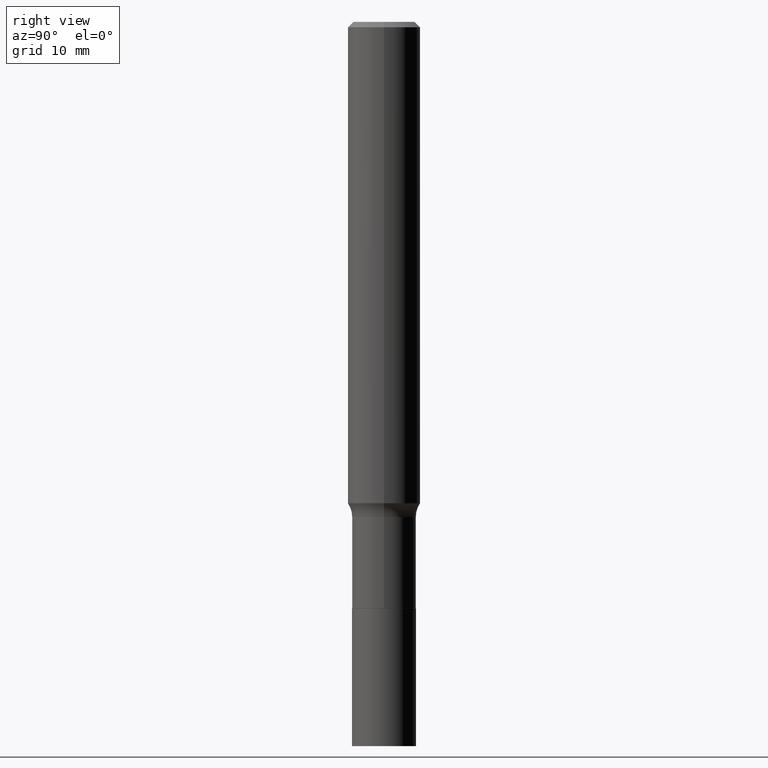
[diagram: clean part render]
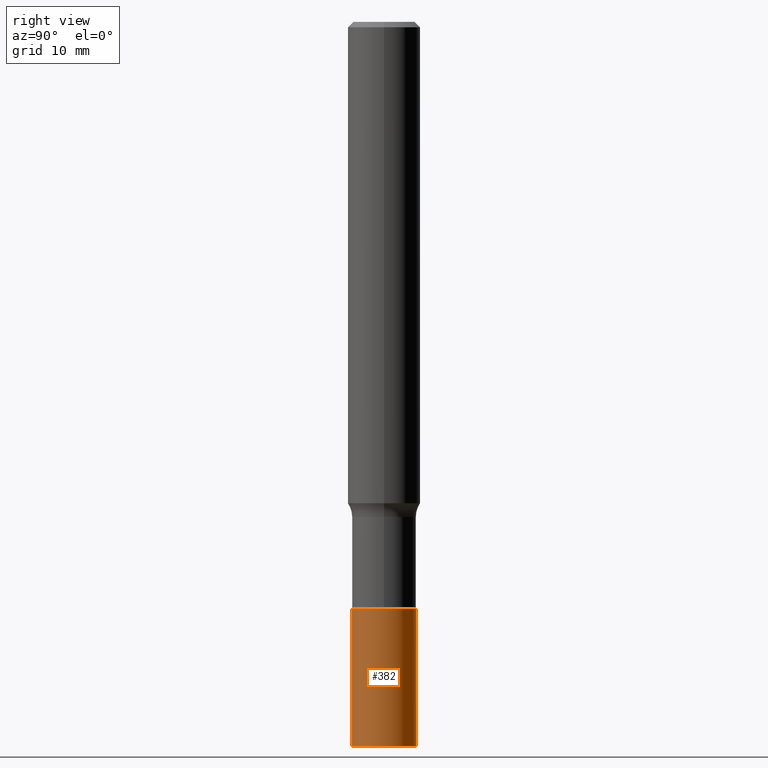
[diagram: same view with one face highlighted and labeled with its STEP entity id]
A machine part, right view. The second image highlights one B-rep face of the part: STEP entity #382.
In plain terms, the highlighted cylindrical surface (edge-blend (fillet) strip) has radius 2.6543 mm, axis along (-0, 0, 1).
Its self-contained STEP definition (entity closure, byte-faithful):
#25 = VERTEX_POINT ( 'NONE', #312 ) ;
#45 = VECTOR ( 'NONE', #145, 39.37007874015748143 ) ;
#51 = EDGE_CURVE ( 'NONE', #25, #135, #176, .T. ) ;
#53 = DIRECTION ( 'NONE',  ( -2.426571974108162816E-29, 3.518542677918260450E-15, 1.000000000000000000 ) ) ;
#83 = AXIS2_PLACEMENT_3D ( 'NONE', #263, #291, #227 ) ;
#118 = EDGE_CURVE ( 'NONE', #422, #25, #455, .T. ) ;
#135 = VERTEX_POINT ( 'NONE', #184 ) ;
#145 = DIRECTION ( 'NONE',  ( -2.426571974108162816E-29, 3.518542677918260450E-15, 1.000000000000000000 ) ) ;
#152 = CARTESIAN_POINT ( 'NONE',  ( 4.678670919993403663E-29, -6.679902097474707102E-15, -1.913200000000000234 ) ) ;
#161 = DIRECTION ( 'NONE',  ( -2.426571974108162816E-29, 3.518542677918260450E-15, 1.000000000000000000 ) ) ;
#164 = ORIENTED_EDGE ( 'NONE', *, *, #318, .F. ) ;
#176 = LINE ( 'NONE', #325, #45 ) ;
#184 = CARTESIAN_POINT ( 'NONE',  ( 7.425171588693624475E-16, 0.1044999999999933066, -1.913200000000000456 ) ) ;
#199 = ORIENTED_EDGE ( 'NONE', *, *, #118, .T. ) ;
#207 = DIRECTION ( 'NONE',  ( -2.426571974108162816E-29, 3.518542677918260450E-15, 1.000000000000000000 ) ) ;
#211 = CARTESIAN_POINT ( 'NONE',  ( 4.678670919993403663E-29, -6.679902097474707102E-15, -1.913200000000000234 ) ) ;
#227 = DIRECTION ( 'NONE',  ( -6.982962677686265922E-15, -1.000000000000000000, 2.614208606377285061E-15 ) ) ;
#234 = CARTESIAN_POINT ( 'NONE',  ( -7.297195998181678828E-16, -0.1045000000000066709, -1.913200000000000012 ) ) ;
#247 = EDGE_LOOP ( 'NONE', ( #199, #314, #461, #164 ) ) ;
#263 = CARTESIAN_POINT ( 'NONE',  ( 5.768201736367969540E-29, -8.259727759860008173E-15, -2.362200000000000522 ) ) ;
#264 = CARTESIAN_POINT ( 'NONE',  ( -7.297195998181680800E-16, -0.1045000000000066848, -1.913200000000000012 ) ) ;
#273 = EDGE_CURVE ( 'NONE', #308, #135, #396, .T. ) ;
#291 = DIRECTION ( 'NONE',  ( -2.426571974108162816E-29, 3.518542677918260450E-15, 1.000000000000000000 ) ) ;
#306 = LINE ( 'NONE', #264, #309 ) ;
#308 = VERTEX_POINT ( 'NONE', #234 ) ;
#309 = VECTOR ( 'NONE', #53, 39.37007874015748143 ) ;
#312 = CARTESIAN_POINT ( 'NONE',  ( 7.425171588693569255E-16, 0.1044999999999917384, -2.362200000000000966 ) ) ;
#314 = ORIENTED_EDGE ( 'NONE', *, *, #51, .T. ) ;
#318 = EDGE_CURVE ( 'NONE', #422, #308, #306, .T. ) ;
#325 = CARTESIAN_POINT ( 'NONE',  ( 7.425171588693514035E-16, 0.1044999999999933343, -1.913200000000000456 ) ) ;
#352 = DIRECTION ( 'NONE',  ( -6.982962677686265922E-15, -1.000000000000000000, 2.614208606377285061E-15 ) ) ;
#382 = ADVANCED_FACE ( 'NONE', ( #388 ), #421, .T. ) ;
#383 = DIRECTION ( 'NONE',  ( -6.982962677686266711E-15, -1.000000000000000000, 2.614208606377285850E-15 ) ) ;
#388 = FACE_OUTER_BOUND ( 'NONE', #247, .T. ) ;
#396 = CIRCLE ( 'NONE', #418, 0.1044999999999999818 ) ;
#418 = AXIS2_PLACEMENT_3D ( 'NONE', #152, #161, #383 ) ;
#421 = CYLINDRICAL_SURFACE ( 'NONE', #449, 0.1045000000000000095 ) ;
#422 = VERTEX_POINT ( 'NONE', #428 ) ;
#428 = CARTESIAN_POINT ( 'NONE',  ( -7.297195998181572331E-16, -0.1045000000000082668, -2.362200000000000077 ) ) ;
#449 = AXIS2_PLACEMENT_3D ( 'NONE', #211, #207, #352 ) ;
#455 = CIRCLE ( 'NONE', #83, 0.1045000000000000095 ) ;
#461 = ORIENTED_EDGE ( 'NONE', *, *, #273, .F. ) ;